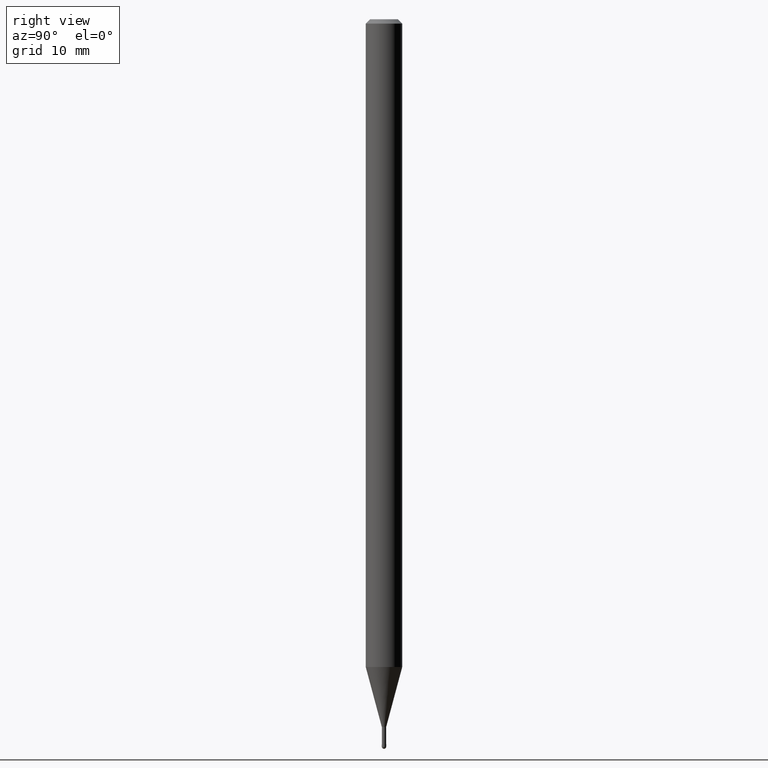
[diagram: clean part render]
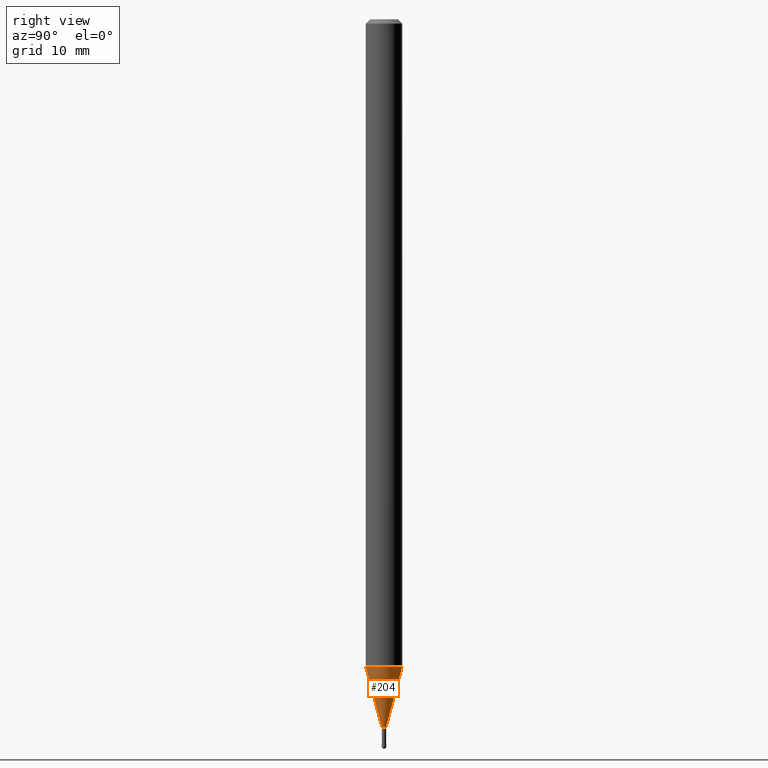
[diagram: same view with one face highlighted and labeled with its STEP entity id]
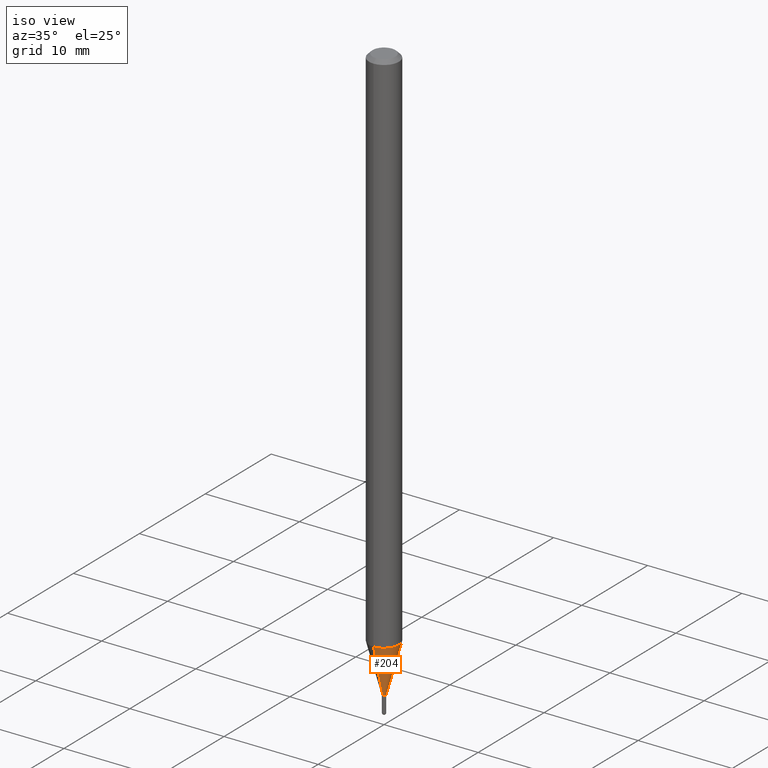
[diagram: same view with one face highlighted and labeled with its STEP entity id]
A machine part, right view. The second image highlights one B-rep face of the part: STEP entity #204.
A second angle (iso view) of the same face is appended — the face is thin or edge-on in the first view.
In plain terms, the highlighted conical surface has half-angle 15 deg.
Its self-contained STEP definition (entity closure, byte-faithful):
#4 = ORIENTED_EDGE ( 'NONE', *, *, #381, .T. ) ;
#14 = DIRECTION ( 'NONE',  ( 1.839019923739649225E-15, 0.2588190451025318417, 0.9659258262890653146 ) ) ;
#23 = VERTEX_POINT ( 'NONE', #39 ) ;
#31 = DIRECTION ( 'NONE',  ( -6.982962677686265922E-15, -1.000000000000000000, 0.000000000000000000 ) ) ;
#39 = CARTESIAN_POINT ( 'NONE',  ( -4.364351673553373859E-16, -0.06250000000000775768, -2.219737205583718342 ) ) ;
#59 = CARTESIAN_POINT ( 'NONE',  ( 5.427980493560302591E-29, -7.750625852600574086E-15, -2.219737205583718342 ) ) ;
#62 = DIRECTION ( 'NONE',  ( -6.982962677686265922E-15, -1.000000000000000000, 4.370956789862821150E-15 ) ) ;
#104 = AXIS2_PLACEMENT_3D ( 'NONE', #234, #229, #196 ) ;
#110 = EDGE_LOOP ( 'NONE', ( #439, #4, #302, #155 ) ) ;
#113 = VECTOR ( 'NONE', #14, 39.37007874015748143 ) ;
#155 = ORIENTED_EDGE ( 'NONE', *, *, #506, .F. ) ;
#178 = DIRECTION ( 'NONE',  ( -2.445325725904081225E-29, 3.491686237949240934E-15, 1.000000000000000000 ) ) ;
#188 = DIRECTION ( 'NONE',  ( -2.445325725904081225E-29, 3.491686237949240934E-15, 1.000000000000000000 ) ) ;
#192 = VECTOR ( 'NONE', #497, 39.37007874015748854 ) ;
#196 = DIRECTION ( 'NONE',  ( -6.982962677686265922E-15, -1.000000000000000000, 0.000000000000000000 ) ) ;
#202 = CONICAL_SURFACE ( 'NONE', #269, 0.007500000000000048295, 0.2617993877991574014 ) ;
#204 = ADVANCED_FACE ( 'NONE', ( #472 ), #202, .T. ) ;
#207 = EDGE_CURVE ( 'NONE', #425, #298, #336, .T. ) ;
#229 = DIRECTION ( 'NONE',  ( -2.445325725904081225E-29, 3.491686237949240934E-15, 1.000000000000000000 ) ) ;
#234 = CARTESIAN_POINT ( 'NONE',  ( 5.929914885317396466E-29, -8.467339127026908092E-15, -2.424999999999999822 ) ) ;
#236 = CARTESIAN_POINT ( 'NONE',  ( 2.486899575160921825E-16, 0.007499999999991580242, -2.424999999999999822 ) ) ;
#262 = LINE ( 'NONE', #338, #192 ) ;
#269 = AXIS2_PLACEMENT_3D ( 'NONE', #349, #188, #31 ) ;
#273 = VERTEX_POINT ( 'NONE', #505 ) ;
#297 = LINE ( 'NONE', #374, #113 ) ;
#298 = VERTEX_POINT ( 'NONE', #236 ) ;
#302 = ORIENTED_EDGE ( 'NONE', *, *, #495, .F. ) ;
#311 = AXIS2_PLACEMENT_3D ( 'NONE', #59, #178, #62 ) ;
#328 = CARTESIAN_POINT ( 'NONE',  ( -5.237222008258802558E-17, -0.007500000000008515480, -2.424999999999999822 ) ) ;
#336 = CIRCLE ( 'NONE', #104, 0.007500000000000048295 ) ;
#338 = CARTESIAN_POINT ( 'NONE',  ( -5.237222008258802558E-17, -0.007500000000008515480, -2.424999999999999822 ) ) ;
#349 = CARTESIAN_POINT ( 'NONE',  ( 5.929914885317396466E-29, -8.467339127026908092E-15, -2.424999999999999822 ) ) ;
#374 = CARTESIAN_POINT ( 'NONE',  ( 5.329070518206715109E-17, 0.007499999999991580242, -2.424999999999999822 ) ) ;
#381 = EDGE_CURVE ( 'NONE', #298, #273, #297, .T. ) ;
#425 = VERTEX_POINT ( 'NONE', #328 ) ;
#439 = ORIENTED_EDGE ( 'NONE', *, *, #207, .T. ) ;
#472 = FACE_OUTER_BOUND ( 'NONE', #110, .T. ) ;
#495 = EDGE_CURVE ( 'NONE', #23, #273, #510, .T. ) ;
#497 = DIRECTION ( 'NONE',  ( -1.807323732225378260E-15, -0.2588190451025250693, 0.9659258262890670910 ) ) ;
#505 = CARTESIAN_POINT ( 'NONE',  ( 4.440892098501167517E-16, 0.06249999999999224232, -2.219737205583718787 ) ) ;
#506 = EDGE_CURVE ( 'NONE', #425, #23, #262, .T. ) ;
#510 = CIRCLE ( 'NONE', #311, 0.06250000000000000000 ) ;